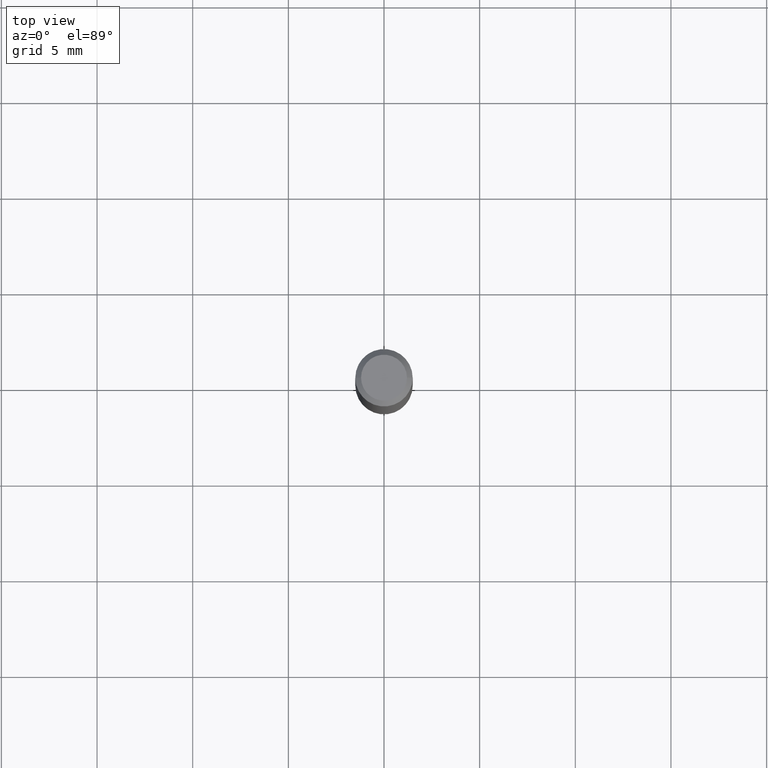
[diagram: clean part render]
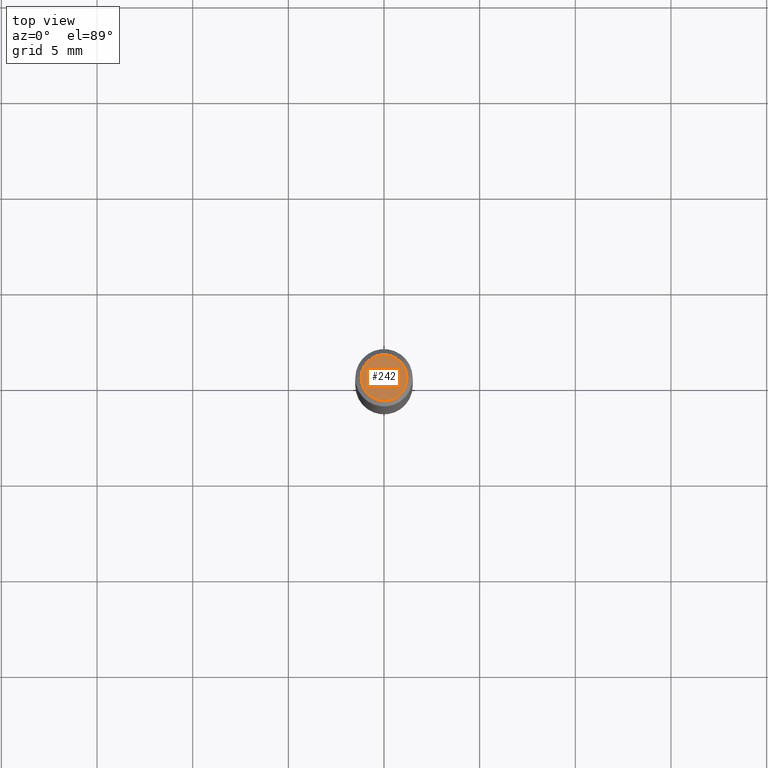
[diagram: same view with one face highlighted and labeled with its STEP entity id]
A machine part, top view. The second image highlights one B-rep face of the part: STEP entity #242.
In plain terms, the highlighted planar face has unit normal (0, -0, -1).
Its self-contained STEP definition (entity closure, byte-faithful):
#23 = CARTESIAN_POINT ( 'NONE',  ( 8.265746106709734507E-48, -1.180129479067563789E-33, -3.380025165646692144E-19 ) ) ;
#35 = AXIS2_PLACEMENT_3D ( 'NONE', #23, #423, #162 ) ;
#65 = FACE_OUTER_BOUND ( 'NONE', #72, .T. ) ;
#72 = EDGE_LOOP ( 'NONE', ( #449, #170 ) ) ;
#94 = VERTEX_POINT ( 'NONE', #197 ) ;
#114 = EDGE_CURVE ( 'NONE', #293, #94, #288, .T. ) ;
#117 = AXIS2_PLACEMENT_3D ( 'NONE', #149, #219, #263 ) ;
#149 = CARTESIAN_POINT ( 'NONE',  ( 8.265746106709734507E-48, -1.180129479067563789E-33, -3.380025165646692144E-19 ) ) ;
#162 = DIRECTION ( 'NONE',  ( 1.000000000000000000, -6.982962677686266711E-15, 4.876185090822587894E-29 ) ) ;
#170 = ORIENTED_EDGE ( 'NONE', *, *, #408, .T. ) ;
#197 = CARTESIAN_POINT ( 'NONE',  ( 0.04724000000000000421, -3.852183633974369838E-16, -3.380025165621689721E-19 ) ) ;
#219 = DIRECTION ( 'NONE',  ( -2.445468806185136597E-29, 3.491481338843145583E-15, 1.000000000000000000 ) ) ;
#242 = ADVANCED_FACE ( 'NONE', ( #65 ), #399, .F. ) ;
#243 = DIRECTION ( 'NONE',  ( 2.438088387897960049E-29, -3.491481338843145188E-15, -1.000000000000000000 ) ) ;
#263 = DIRECTION ( 'NONE',  ( 1.000000000000000000, -6.982962677686266711E-15, 4.876185090822587894E-29 ) ) ;
#288 = CIRCLE ( 'NONE', #35, 0.04724000000000000421 ) ;
#293 = VERTEX_POINT ( 'NONE', #481 ) ;
#324 = AXIS2_PLACEMENT_3D ( 'NONE', #405, #243, #442 ) ;
#326 = CIRCLE ( 'NONE', #117, 0.04724000000000000421 ) ;
#399 = PLANE ( 'NONE',  #324 ) ;
#405 = CARTESIAN_POINT ( 'NONE',  ( 4.132873053354867254E-48, -5.900647395337818946E-34, -1.690012582823346072E-19 ) ) ;
#408 = EDGE_CURVE ( 'NONE', #94, #293, #326, .T. ) ;
#423 = DIRECTION ( 'NONE',  ( -2.445468806185136597E-29, 3.491481338843145583E-15, 1.000000000000000000 ) ) ;
#442 = DIRECTION ( 'NONE',  ( -1.000000000000000000, 6.982962677686265922E-15, -4.876176775795935793E-29 ) ) ;
#449 = ORIENTED_EDGE ( 'NONE', *, *, #114, .T. ) ;
#481 = CARTESIAN_POINT ( 'NONE',  ( -0.04724000000000000421, 3.504923541997677355E-16, -3.380025165670481712E-19 ) ) ;